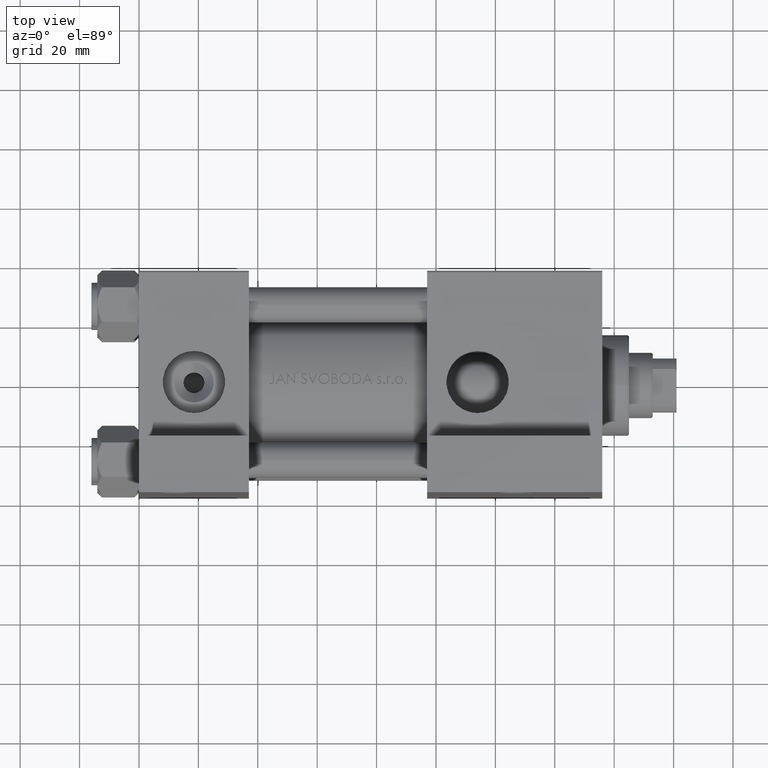
[diagram: clean part render]
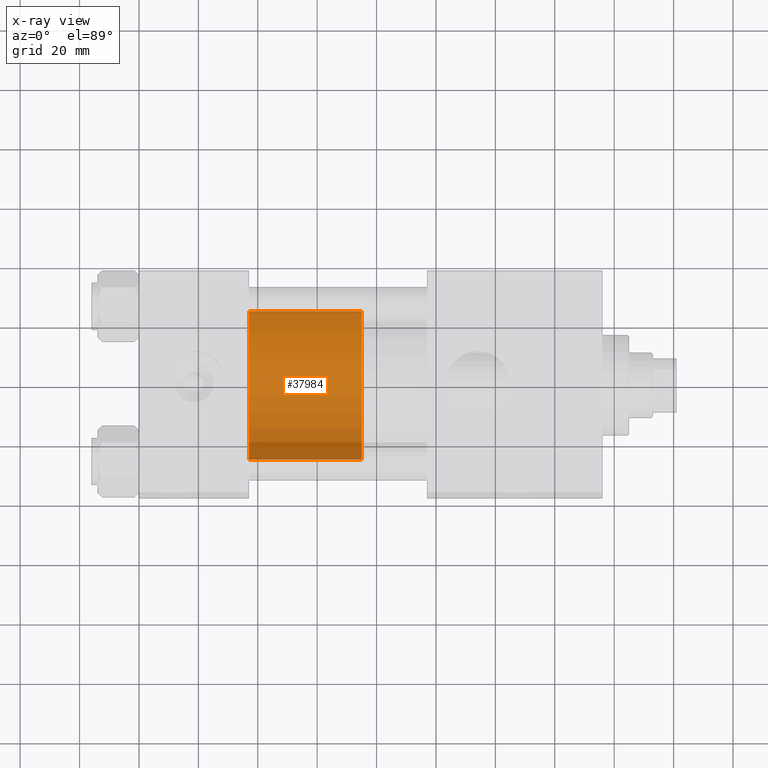
[diagram: x-ray — body ghosted, one internal face saturated and labeled with its STEP entity id]
A machine part, top view, then the same camera in x-ray: the body is ghosted and one INTERNAL B-rep face — a face not visible from any outside direction — is saturated and labeled: STEP entity #37984.
In plain terms, the highlighted cylindrical surface (partial cylindrical patch) has radius 25 mm, axis along (-1, 0, 0).
Its self-contained STEP definition (entity closure, byte-faithful):
#84 = CIRCLE ( 'NONE', #44633, 25.00000000000000000 ) ;
#2831 = FACE_OUTER_BOUND ( 'NONE', #22805, .T. ) ;
#3773 = CARTESIAN_POINT ( 'NONE',  ( -25.00000000000000000, 0.000000000000000000, 0.000000000000000000 ) ) ;
#5024 = ORIENTED_EDGE ( 'NONE', *, *, #20550, .F. ) ;
#5940 = VERTEX_POINT ( 'NONE', #3773 ) ;
#7433 = ORIENTED_EDGE ( 'NONE', *, *, #22233, .T. ) ;
#8076 = VERTEX_POINT ( 'NONE', #33381 ) ;
#9834 = DIRECTION ( 'NONE',  ( 1.000000000000000000, 0.000000000000000000, 0.000000000000000000 ) ) ;
#10565 = DIRECTION ( 'NONE',  ( 0.000000000000000000, 0.000000000000000000, 1.000000000000000000 ) ) ;
#10584 = DIRECTION ( 'NONE',  ( 0.000000000000000000, 0.000000000000000000, 1.000000000000000000 ) ) ;
#11219 = CIRCLE ( 'NONE', #39091, 25.00000000000000000 ) ;
#12671 = ORIENTED_EDGE ( 'NONE', *, *, #36789, .F. ) ;
#13676 = LINE ( 'NONE', #14424, #42915 ) ;
#14295 = CARTESIAN_POINT ( 'NONE',  ( 25.00000000000000000, 3.061616997868383043E-15, 0.000000000000000000 ) ) ;
#14424 = CARTESIAN_POINT ( 'NONE',  ( 25.00000000000000000, 3.061616997868383043E-15, 38.00000000000000000 ) ) ;
#15520 = DIRECTION ( 'NONE',  ( -0.000000000000000000, -0.000000000000000000, -1.000000000000000000 ) ) ;
#19738 = ORIENTED_EDGE ( 'NONE', *, *, #35126, .T. ) ;
#20550 = EDGE_CURVE ( 'NONE', #8076, #5940, #27251, .T. ) ;
#21275 = DIRECTION ( 'NONE',  ( -0.000000000000000000, -0.000000000000000000, -1.000000000000000000 ) ) ;
#22233 = EDGE_CURVE ( 'NONE', #34840, #27342, #13676, .T. ) ;
#22805 = EDGE_LOOP ( 'NONE', ( #12671, #7433, #19738, #5024 ) ) ;
#23999 = AXIS2_PLACEMENT_3D ( 'NONE', #43947, #21275, #36465 ) ;
#27251 = LINE ( 'NONE', #46653, #43617 ) ;
#27342 = VERTEX_POINT ( 'NONE', #14295 ) ;
#29056 = DIRECTION ( 'NONE',  ( 1.000000000000000000, 0.000000000000000000, 0.000000000000000000 ) ) ;
#33373 = DIRECTION ( 'NONE',  ( -0.000000000000000000, -0.000000000000000000, -1.000000000000000000 ) ) ;
#33381 = CARTESIAN_POINT ( 'NONE',  ( -25.00000000000000000, 0.000000000000000000, 38.00000000000000000 ) ) ;
#34840 = VERTEX_POINT ( 'NONE', #46613 ) ;
#35126 = EDGE_CURVE ( 'NONE', #27342, #5940, #84, .T. ) ;
#36465 = DIRECTION ( 'NONE',  ( -1.000000000000000000, 0.000000000000000000, 0.000000000000000000 ) ) ;
#36789 = EDGE_CURVE ( 'NONE', #34840, #8076, #11219, .T. ) ;
#37457 = CYLINDRICAL_SURFACE ( 'NONE', #23999, 25.00000000000000000 ) ;
#37984 = ADVANCED_FACE ( 'NONE', ( #2831 ), #37457, .T. ) ;
#39091 = AXIS2_PLACEMENT_3D ( 'NONE', #44477, #10584, #29056 ) ;
#42915 = VECTOR ( 'NONE', #33373, 1000.000000000000000 ) ;
#43617 = VECTOR ( 'NONE', #15520, 1000.000000000000000 ) ;
#43947 = CARTESIAN_POINT ( 'NONE',  ( 0.000000000000000000, 0.000000000000000000, 38.00000000000000000 ) ) ;
#44477 = CARTESIAN_POINT ( 'NONE',  ( 0.000000000000000000, 0.000000000000000000, 38.00000000000000000 ) ) ;
#44633 = AXIS2_PLACEMENT_3D ( 'NONE', #48202, #10565, #9834 ) ;
#46613 = CARTESIAN_POINT ( 'NONE',  ( 25.00000000000000000, 3.061616997868383043E-15, 38.00000000000000000 ) ) ;
#46653 = CARTESIAN_POINT ( 'NONE',  ( -25.00000000000000000, 0.000000000000000000, 38.00000000000000000 ) ) ;
#48202 = CARTESIAN_POINT ( 'NONE',  ( 0.000000000000000000, 0.000000000000000000, 0.000000000000000000 ) ) ;